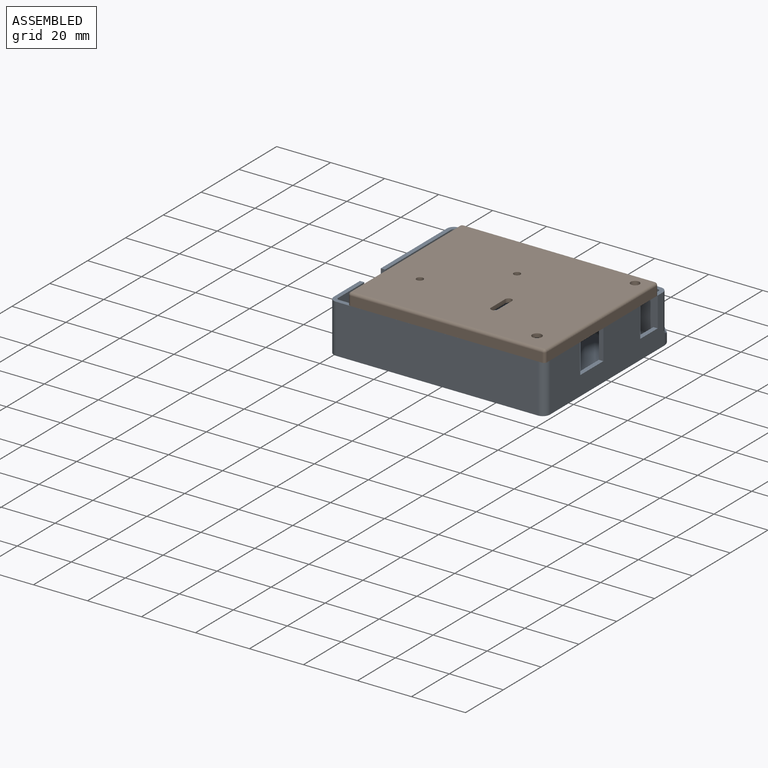
[diagram: assembled view]
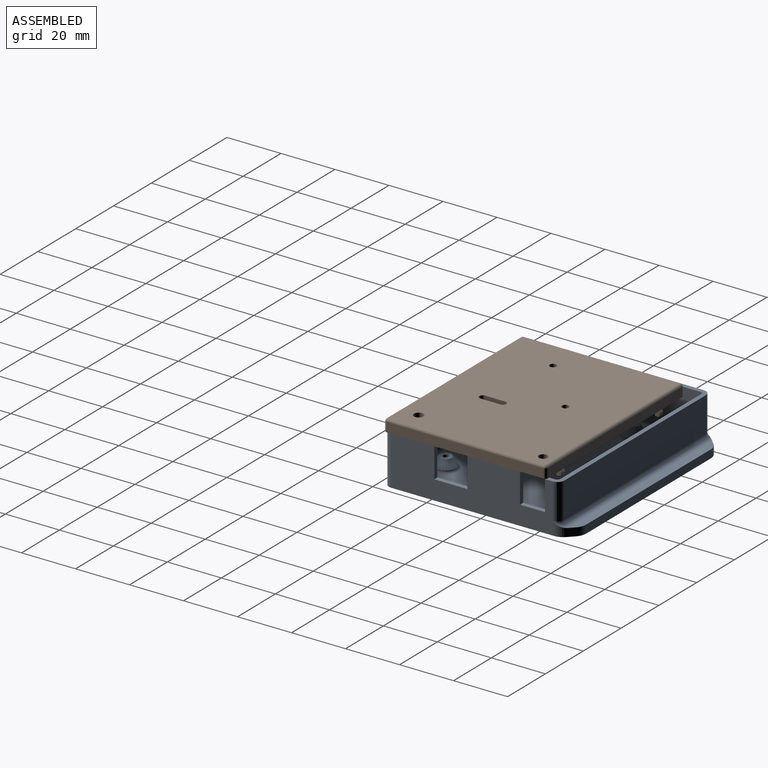
[diagram: assembled view, second angle]
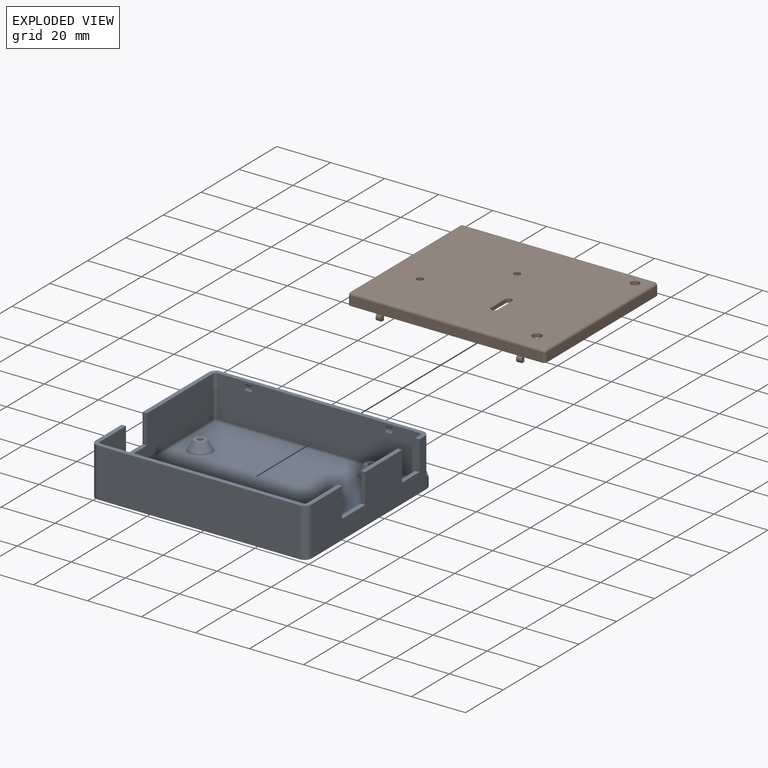
[diagram: exploded view]
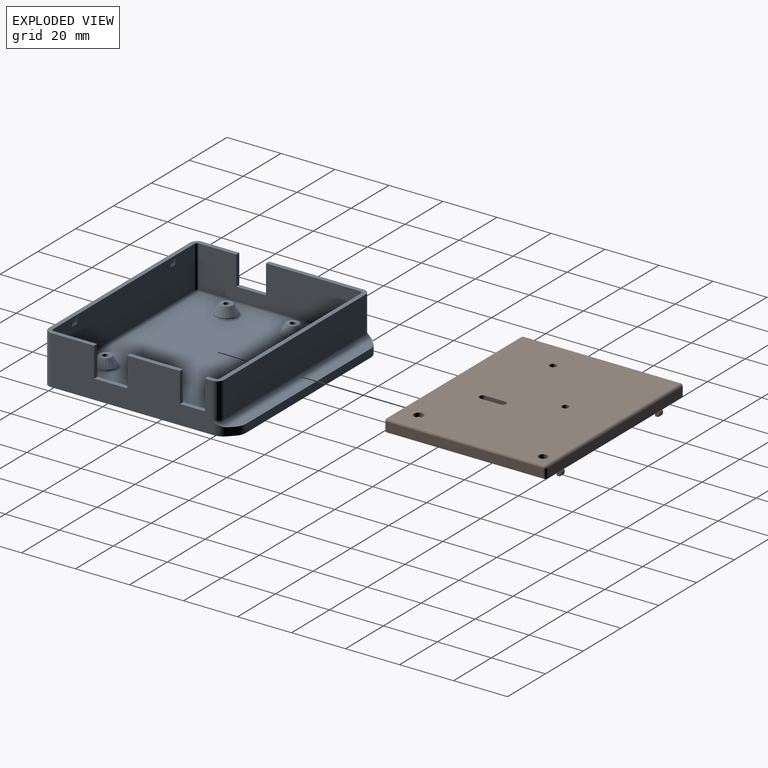
[diagram: exploded view, second angle]
ASSEMBLY  parts=2 mates=3
PART A: 81 faces, bbox 87.9x70x18.1 mm
  f0: plane 80x18.65mm, normal (0,0,1), area 176.5mm2, adj f1,f2,f3,f4,f8,f11,f35,f36
  f1: plane 60.33x18.1mm, normal (-1,0,0), area 966.7mm2, adj f0,f6,f9,f37,f38,f71,f72,f73
  f2: plane 59.8x15.5mm, normal (1,0,0), area 808.6mm2, adj f0,f6,f33,f36,f54,f71,f72,f73
  f3: plane 60.33x18.1mm, normal (1,0,0), area 848.4mm2, adj f0,f5,f6,f9,f39,f40,f41,f42
  f4: plane 59.8x15.5mm, normal (-1,0,0), area 690.4mm2, adj f0,f5,f6,f34,f35,f41,f42,f43
  f5: plane 19.5x1.6mm, normal (0,0,1), area 31.2mm2, adj f3,f4,f43,f44
  f6: plane 80x37.6mm, normal (0,0,1), area 189.1mm2, adj f1,f2,f3,f4,f7,f10,f33,f34
  f7: plane 74.8x13.1mm, normal (0,1,0), area 979.9mm2, adj f6,f37,f40,f79
  f8: plane 74.8x18.1mm, normal (0,-1,0), area 1353.9mm2, adj f0,f9,f38,f39
  f9: plane 80x70mm, normal (0,0,-1), area 5569.9mm2, adj f1,f3,f8,f25,f26,f27,f38,f39
  f10: plane 74.8x15.5mm, normal (0,-1,0), area 1148.8mm2, adj f6,f33,f34,f53,f59,f60,f61,f65
  f11: plane 74.8x15.5mm, normal (0,1,0), area 1148.8mm2, adj f0,f35,f36,f49,f62,f63,f64,f68
  f12: plane 74.8x59.8mm, normal (0,0,1), area 4163.6mm2, adj f48,f49,f51,f53,f54,f56,f57,f58
  f13: cylinder r=1mm len=4mm, axis (0,0,-1), area 25.1mm2, adj f14,f15
  f14: plane 4.5x4.5mm, normal (0,0,1), area 12.8mm2, adj f13,f30
  f15: plane 2x2mm, normal (0,0,1), area 3.1mm2, adj f13
  f16: cylinder r=1mm len=4mm, axis (0,0,-1), area 25.1mm2, adj f17,f18
  f17: plane 4.5x4.5mm, normal (0,0,1), area 12.8mm2, adj f16,f29
  f18: plane 2x2mm, normal (0,0,1), area 3.1mm2, adj f16
  f19: cylinder r=1mm len=4mm, axis (0,0,-1), area 25.1mm2, adj f20,f21
  f20: plane 4.5x4.5mm, normal (0,0,1), area 12.8mm2, adj f19,f32
  f21: plane 2x2mm, normal (0,0,1), area 3.1mm2, adj f19
  f22: cylinder r=1mm len=4mm, axis (0,0,-1), area 25.1mm2, adj f23,f24
  f23: plane 4.5x4.5mm, normal (0,0,1), area 12.8mm2, adj f22,f31
  f24: plane 2x2mm, normal (0,0,1), area 3.1mm2, adj f22
  f25: plane 3.07x2.1mm, normal (-0.71,0.71,0), area 8.8mm2, adj f9,f28,f74,f75,f80
  f26: plane 65.86x3mm, normal (0,1,0), area 197.6mm2, adj f9,f28,f75,f76
  f27: plane 3.07x2.1mm, normal (0.71,0.71,0), area 8.8mm2, adj f9,f28,f76,f77,f78
  f28: plane 76.09x3.05mm, normal (0,0,1), area 217.9mm2, adj f25,f26,f27,f75,f76,f78,f79,f80
  f29: cone r=2.25mm half-angle=30deg, axis (0,0,-1), area 68.7mm2, adj f17,f56
  f30: cone r=2.25mm half-angle=30deg, axis (0,0,-1), area 68.7mm2, adj f14,f51
  f31: cone r=2.25mm half-angle=30deg, axis (0,0,-1), area 68.7mm2, adj f23,f58
  f32: cone r=2.25mm half-angle=30deg, axis (0,0,-1), area 68.7mm2, adj f20,f57
  f33: cylinder r=1mm len=15.5mm, axis (0,0,1), area 24.3mm2, adj f2,f6,f10,f55
  f34: cylinder r=1mm len=15.5mm, axis (0,0,1), area 24.3mm2, adj f4,f6,f10,f50
  f35: cylinder r=1mm len=15.5mm, axis (0,0,1), area 24.3mm2, adj f0,f4,f11,f47
  f36: cylinder r=1mm len=15.5mm, axis (0,0,1), area 24.3mm2, adj f0,f2,f11,f52
  f37: cylinder r=2.6mm len=13.1mm, axis (0,0,1), area 53.5mm2, adj f1,f6,f7,f80
  f38: cylinder r=2.6mm len=18.1mm, axis (0,0,-1), area 73.9mm2, adj f0,f1,f8,f9
  f39: cylinder r=2.6mm len=18.1mm, axis (0,0,1), area 73.9mm2, adj f0,f3,f8,f9
  f40: cylinder r=2.6mm len=13.1mm, axis (0,0,-1), area 53.5mm2, adj f3,f6,f7,f78
  f41: plane 11x1.6mm, normal (0,1,0), area 17.6mm2, adj f0,f3,f4,f42
  f42: plane 12.25x1.6mm, normal (0,0,1), area 19.6mm2, adj f3,f4,f41,f43
  f43: plane 11x1.6mm, normal (0,-1,0), area 17.6mm2, adj f3,f4,f5,f42
  f44: plane 11x1.6mm, normal (0,1,0), area 17.6mm2, adj f3,f4,f5,f45
  f45: plane 9.25x1.6mm, normal (0,0,1), area 14.8mm2, adj f3,f4,f44,f46
  f46: plane 11x1.6mm, normal (0,-1,0), area 17.6mm2, adj f3,f4,f6,f45
  f47: sphere r=1mm, area 1.6mm2, adj f35,f48,f49
  f48: cylinder r=1mm len=59.8mm, axis (0,-1,0), area 93.9mm2, adj f4,f12,f47,f50
  f49: cylinder r=1mm len=74.8mm, axis (-1,0,0), area 117.5mm2, adj f11,f12,f47,f52
  f50: sphere r=1mm, area 1.6mm2, adj f34,f48,f53
  f51: torus R=5mm, axis (0,0,1), area 39.8mm2, adj f12,f30,f53
  f52: sphere r=1mm, area 1.6mm2, adj f36,f49,f54
  f53: cylinder r=1mm len=74.8mm, axis (1,0,0), area 115.1mm2, adj f10,f12,f50,f51,f55
  f54: cylinder r=1mm len=59.8mm, axis (0,1,0), area 93.9mm2, adj f2,f12,f52,f55
  f55: sphere r=1mm, area 1.6mm2, adj f33,f53,f54
  f56: torus R=5mm, axis (0,0,1), area 42.3mm2, adj f12,f29
  f57: torus R=5mm, axis (0,0,1), area 42.3mm2, adj f12,f32
  f58: torus R=5mm, axis (0,0,1), area 42.3mm2, adj f12,f31
  f59: cylinder r=1.6mm len=2.5mm, axis (-1,0,0), area 5.8mm2, adj f10,f60,f61
  f60: plane 2.12x0.4mm, normal (-1,0,0), area 0.6mm2, adj f10,f59
  f61: plane 2.12x0.4mm, normal (1,0,0), area 0.6mm2, adj f10,f59
  f62: cylinder r=1.6mm len=2.5mm, axis (-1,0,0), area 5.8mm2, adj f11,f63,f64
  f63: plane 2.12x0.4mm, normal (-1,0,0), area 0.6mm2, adj f11,f62
  f64: plane 2.12x0.4mm, normal (1,0,0), area 0.6mm2, adj f11,f62
  f65: cylinder r=1.6mm len=2.5mm, axis (1,0,0), area 5.8mm2, adj f10,f66,f67
  f66: plane 2.12x0.4mm, normal (1,0,0), area 0.6mm2, adj f10,f65
  f67: plane 2.12x0.4mm, normal (-1,0,0), area 0.6mm2, adj f10,f65
  f68: cylinder r=1.6mm len=2.5mm, axis (1,0,0), area 5.8mm2, adj f11,f69,f70
  f69: plane 2.12x0.4mm, normal (1,0,0), area 0.6mm2, adj f11,f68
  f70: plane 2.12x0.4mm, normal (-1,0,0), area 0.6mm2, adj f11,f68
  f71: plane 10.75x1.6mm, normal (0,-1,0), area 17.2mm2, adj f1,f2,f6,f72
  f72: plane 11x1.6mm, normal (0,0,1), area 17.6mm2, adj f1,f2,f71,f73
  f73: plane 10.75x1.6mm, normal (0,1,0), area 17.2mm2, adj f0,f1,f2,f72
  f74: cylinder r=5mm len=4.54mm, axis (0,0,1), area 14.1mm2, adj f1,f9,f25,f80
  f75: cylinder r=5mm len=3.54mm, axis (0,0,-1), area 11.8mm2, adj f9,f25,f26,f28
  f76: cylinder r=5mm len=3.54mm, axis (0,0,-1), area 11.8mm2, adj f9,f26,f27,f28
  f77: cylinder r=5mm len=4.54mm, axis (0,0,-1), area 14.1mm2, adj f3,f9,f27,f78
  f78: torus R=4.6mm, axis (0,0,-1), area 7.9mm2, adj f3,f27,f28,f40,f77,f79
  f79: cylinder r=2mm len=74.8mm, axis (1,0,0), area 235mm2, adj f7,f28,f78,f80
  f80: torus R=4.6mm, axis (0,0,-1), area 7.9mm2, adj f1,f25,f28,f37,f74,f79
PART B: 87 faces, bbox 73x60x7.4 mm
  f0: plane 50x1.9mm, normal (0,1,0), area 95mm2, adj f5,f26,f38,f66
  f1: plane 68x55mm, normal (0,0,-1), area 3669.4mm2, adj f39,f40,f41,f42,f43,f44,f45,f46
  f2: plane 50x1.9mm, normal (0,-1,0), area 95mm2, adj f5,f20,f32,f39
  f3: plane 7x1.9mm, normal (0,1,0), area 13.3mm2, adj f5,f25,f54,f59
  f4: plane 7x1.9mm, normal (0,-1,0), area 13.3mm2, adj f5,f19,f48,f49
  f5: plane 73x60mm, normal (0,0,-1), area 390mm2, adj f0,f2,f3,f4,f6,f7,f8,f9
  f6: plane 71x3.4mm, normal (0,1,0), area 241.4mm2, adj f5,f69,f75,f78
  f7: plane 58x3.4mm, normal (-1,0,0), area 197.2mm2, adj f5,f72,f76,f78
  f8: plane 71x3.4mm, normal (0,-1,0), area 241.4mm2, adj f5,f67,f71,f72
  f9: plane 58x3.4mm, normal (1,0,0), area 197.2mm2, adj f5,f67,f69,f70
  f10: plane 71x58mm, normal (0,0,1), area 4066.6mm2, adj f70,f71,f75,f76,f79,f80,f81,f82
  f11: plane 7x1.9mm, normal (0,-1,0), area 13.3mm2, adj f5,f31,f46,f47
  f12: plane 55x1.9mm, normal (1,0,0), area 104.5mm2, adj f5,f47,f52,f53
  f13: plane 7x1.9mm, normal (0,1,0), area 13.3mm2, adj f5,f37,f53,f58
  f14: plane 55x1.9mm, normal (-1,0,0), area 104.5mm2, adj f5,f48,f54,f55
  f15: plane 4.92x2mm, normal (0,-1,0), area 9.8mm2, adj f16,f19,f20,f43
  f16: plane 2x1.2mm, normal (0,0,-1), area 2.4mm2, adj f15,f17,f19,f20
  f17: cylinder r=1.5mm len=2.04mm, axis (-1,0,0), area 4.5mm2, adj f16,f18,f19,f20
  f18: plane 2x0.98mm, normal (0,1,0), area 2mm2, adj f5,f17,f19,f20
  f19: plane 4.92x1.6mm, normal (1,0,0), area 6.5mm2, adj f4,f15,f16,f17,f18,f45
  f20: plane 4.92x1.6mm, normal (-1,0,0), area 6.5mm2, adj f2,f15,f16,f17,f18,f41
  f21: plane 2x0.98mm, normal (0,-1,0), area 2mm2, adj f5,f22,f25,f26
  f22: cylinder r=1.5mm len=2.04mm, axis (-1,0,0), area 4.5mm2, adj f21,f23,f25,f26
  f23: plane 2x1.2mm, normal (0,0,-1), area 2.4mm2, adj f22,f24,f25,f26
  f24: plane 4.92x2mm, normal (0,1,0), area 9.8mm2, adj f23,f25,f26,f63
  f25: plane 4.92x1.6mm, normal (1,0,0), area 6.5mm2, adj f3,f21,f22,f23,f24,f61
  f26: plane 4.92x1.6mm, normal (-1,0,0), area 6.5mm2, adj f0,f21,f22,f23,f24,f65
  f27: plane 2x0.98mm, normal (0,1,0), area 2mm2, adj f5,f28,f31,f32
  f28: cylinder r=1.5mm len=2.04mm, axis (1,0,0), area 4.5mm2, adj f27,f29,f31,f32
  f29: plane 2x1.2mm, normal (0,0,-1), area 2.4mm2, adj f28,f30,f31,f32
  f30: plane 4.92x2mm, normal (0,-1,0), area 9.8mm2, adj f29,f31,f32,f42
  f31: plane 4.92x1.6mm, normal (-1,0,0), area 6.5mm2, adj f11,f27,f28,f29,f30,f44
  f32: plane 4.92x1.6mm, normal (1,0,0), area 6.5mm2, adj f2,f27,f28,f29,f30,f40
  f33: plane 2x0.98mm, normal (0,-1,0), area 2mm2, adj f5,f36,f37,f38
  f34: plane 4.92x2mm, normal (0,1,0), area 9.8mm2, adj f35,f37,f38,f62
  f35: plane 2x1.2mm, normal (0,0,-1), area 2.4mm2, adj f34,f36,f37,f38
  f36: cylinder r=1.5mm len=2.04mm, axis (1,0,0), area 4.5mm2, adj f33,f35,f37,f38
  f37: plane 4.92x1.6mm, normal (-1,0,0), area 6.5mm2, adj f13,f33,f34,f35,f36,f60
  f38: plane 4.92x1.6mm, normal (1,0,0), area 6.5mm2, adj f0,f33,f34,f35,f36,f64
  f39: cylinder r=1mm len=50mm, axis (1,0,0), area 77.4mm2, adj f1,f2,f40,f41
  f40: cylinder r=1mm len=2.2mm, axis (0,-1,0), area 1.9mm2, adj f1,f32,f39,f42
  f41: cylinder r=1mm len=2.2mm, axis (0,-1,0), area 1.9mm2, adj f1,f20,f39,f43
  f42: cylinder r=1mm len=4mm, axis (1,0,0), area 4.3mm2, adj f1,f30,f40,f44
  f43: cylinder r=1mm len=4mm, axis (1,0,0), area 4.3mm2, adj f1,f15,f41,f45
  f44: cylinder r=1mm len=2.2mm, axis (0,1,0), area 1.9mm2, adj f1,f31,f42,f46
  f45: cylinder r=1mm len=2.2mm, axis (0,1,0), area 1.9mm2, adj f1,f19,f43,f49
  f46: cylinder r=1mm len=7mm, axis (1,0,0), area 10.4mm2, adj f1,f11,f44,f50
  f47: cylinder r=1mm len=1.9mm, axis (0,0,1), area 3mm2, adj f5,f11,f12,f50
  f48: cylinder r=1mm len=1.9mm, axis (0,0,-1), area 3mm2, adj f4,f5,f14,f51
  f49: cylinder r=1mm len=7mm, axis (1,0,0), area 10.4mm2, adj f1,f4,f45,f51
  f50: sphere r=1mm, area 1.6mm2, adj f46,f47,f52
  f51: sphere r=1mm, area 1.6mm2, adj f48,f49,f55
  f52: cylinder r=1mm len=55mm, axis (0,1,0), area 86.4mm2, adj f1,f12,f50,f56
  f53: cylinder r=1mm len=1.9mm, axis (0,0,-1), area 3mm2, adj f5,f12,f13,f56
  f54: cylinder r=1mm len=1.9mm, axis (0,0,1), area 3mm2, adj f3,f5,f14,f57
  f55: cylinder r=1mm len=55mm, axis (0,-1,0), area 86.4mm2, adj f1,f14,f51,f57
  f56: sphere r=1mm, area 1.6mm2, adj f52,f53,f58
  f57: sphere r=1mm, area 1.6mm2, adj f54,f55,f59
  f58: cylinder r=1mm len=7mm, axis (-1,0,0), area 10.4mm2, adj f1,f13,f56,f60
  f59: cylinder r=1mm len=7mm, axis (-1,0,0), area 10.4mm2, adj f1,f3,f57,f61
  f60: cylinder r=1mm len=2.2mm, axis (0,-1,0), area 1.9mm2, adj f1,f37,f58,f62
  f61: cylinder r=1mm len=2.2mm, axis (0,-1,0), area 1.9mm2, adj f1,f25,f59,f63
  f62: cylinder r=1mm len=4mm, axis (-1,0,0), area 4.3mm2, adj f1,f34,f60,f64
  f63: cylinder r=1mm len=4mm, axis (-1,0,0), area 4.3mm2, adj f1,f24,f61,f65
  f64: cylinder r=1mm len=2.2mm, axis (0,1,0), area 1.9mm2, adj f1,f38,f62,f66
  f65: cylinder r=1mm len=2.2mm, axis (0,1,0), area 1.9mm2, adj f1,f26,f63,f66
  f66: cylinder r=1mm len=50mm, axis (-1,0,0), area 77.4mm2, adj f0,f1,f64,f65
  f67: cylinder r=1mm len=3.4mm, axis (0,0,-1), area 5.3mm2, adj f5,f8,f9,f68
  f68: sphere r=1mm, area 1.6mm2, adj f67,f70,f71
  f69: cylinder r=1mm len=3.4mm, axis (0,0,1), area 5.3mm2, adj f5,f6,f9,f73
  f70: cylinder r=1mm len=58mm, axis (0,1,0), area 91.1mm2, adj f9,f10,f68,f73
  f71: cylinder r=1mm len=71mm, axis (1,0,0), area 111.5mm2, adj f8,f10,f68,f74
  f72: cylinder r=1mm len=3.4mm, axis (0,0,1), area 5.3mm2, adj f5,f7,f8,f74
  f73: sphere r=1mm, area 1.6mm2, adj f69,f70,f75
  f74: sphere r=1mm, area 1.6mm2, adj f71,f72,f76
  f75: cylinder r=1mm len=71mm, axis (-1,0,0), area 111.5mm2, adj f6,f10,f73,f77
  f76: cylinder r=1mm len=58mm, axis (0,-1,0), area 91.1mm2, adj f7,f10,f74,f77
  f77: sphere r=1mm, area 1.6mm2, adj f75,f76,f78
  f78: cylinder r=1mm len=3.4mm, axis (0,0,-1), area 5.3mm2, adj f5,f6,f7,f77
  f79: cylinder r=1.25mm len=2.5mm, axis (0,0,1), area 11.8mm2, adj f1,f10
  f80: cylinder r=1.25mm len=2.5mm, axis (0,0,1), area 5.9mm2, adj f1,f10,f81,f83
  f81: plane 7.5x1.5mm, normal (1,0,0), area 11.3mm2, adj f1,f10,f80,f82
  f82: cylinder r=1.25mm len=2.5mm, axis (0,0,1), area 5.9mm2, adj f1,f10,f81,f83
  f83: plane 7.5x1.5mm, normal (-1,0,0), area 11.3mm2, adj f1,f10,f80,f82
  f84: cylinder r=1.25mm len=2.5mm, axis (0,0,1), area 11.8mm2, adj f1,f10
  f85: cylinder r=1.75mm len=3.5mm, axis (0,0,1), area 16.5mm2, adj f1,f10
  f86: cylinder r=1.62mm len=3.25mm, axis (0,0,1), area 15.3mm2, adj f1,f10
PLACE A t=(-59.7,-3.07,16.64)mm
PLACE B t=(-56.2,-5.57,39.14)mm
MATE planar B.f8 <-> A.f8  axis (0,-1,0) through (-56.2,-35.57,36.44)mm
MATE planar B.f9 <-> A.f3  axis (1,0,0) through (-19.7,-5.57,36.44)mm
MATE planar A.f0 <-> B.f5  axis (0,0,1) through (-58.9,-32.23,34.74)mm
